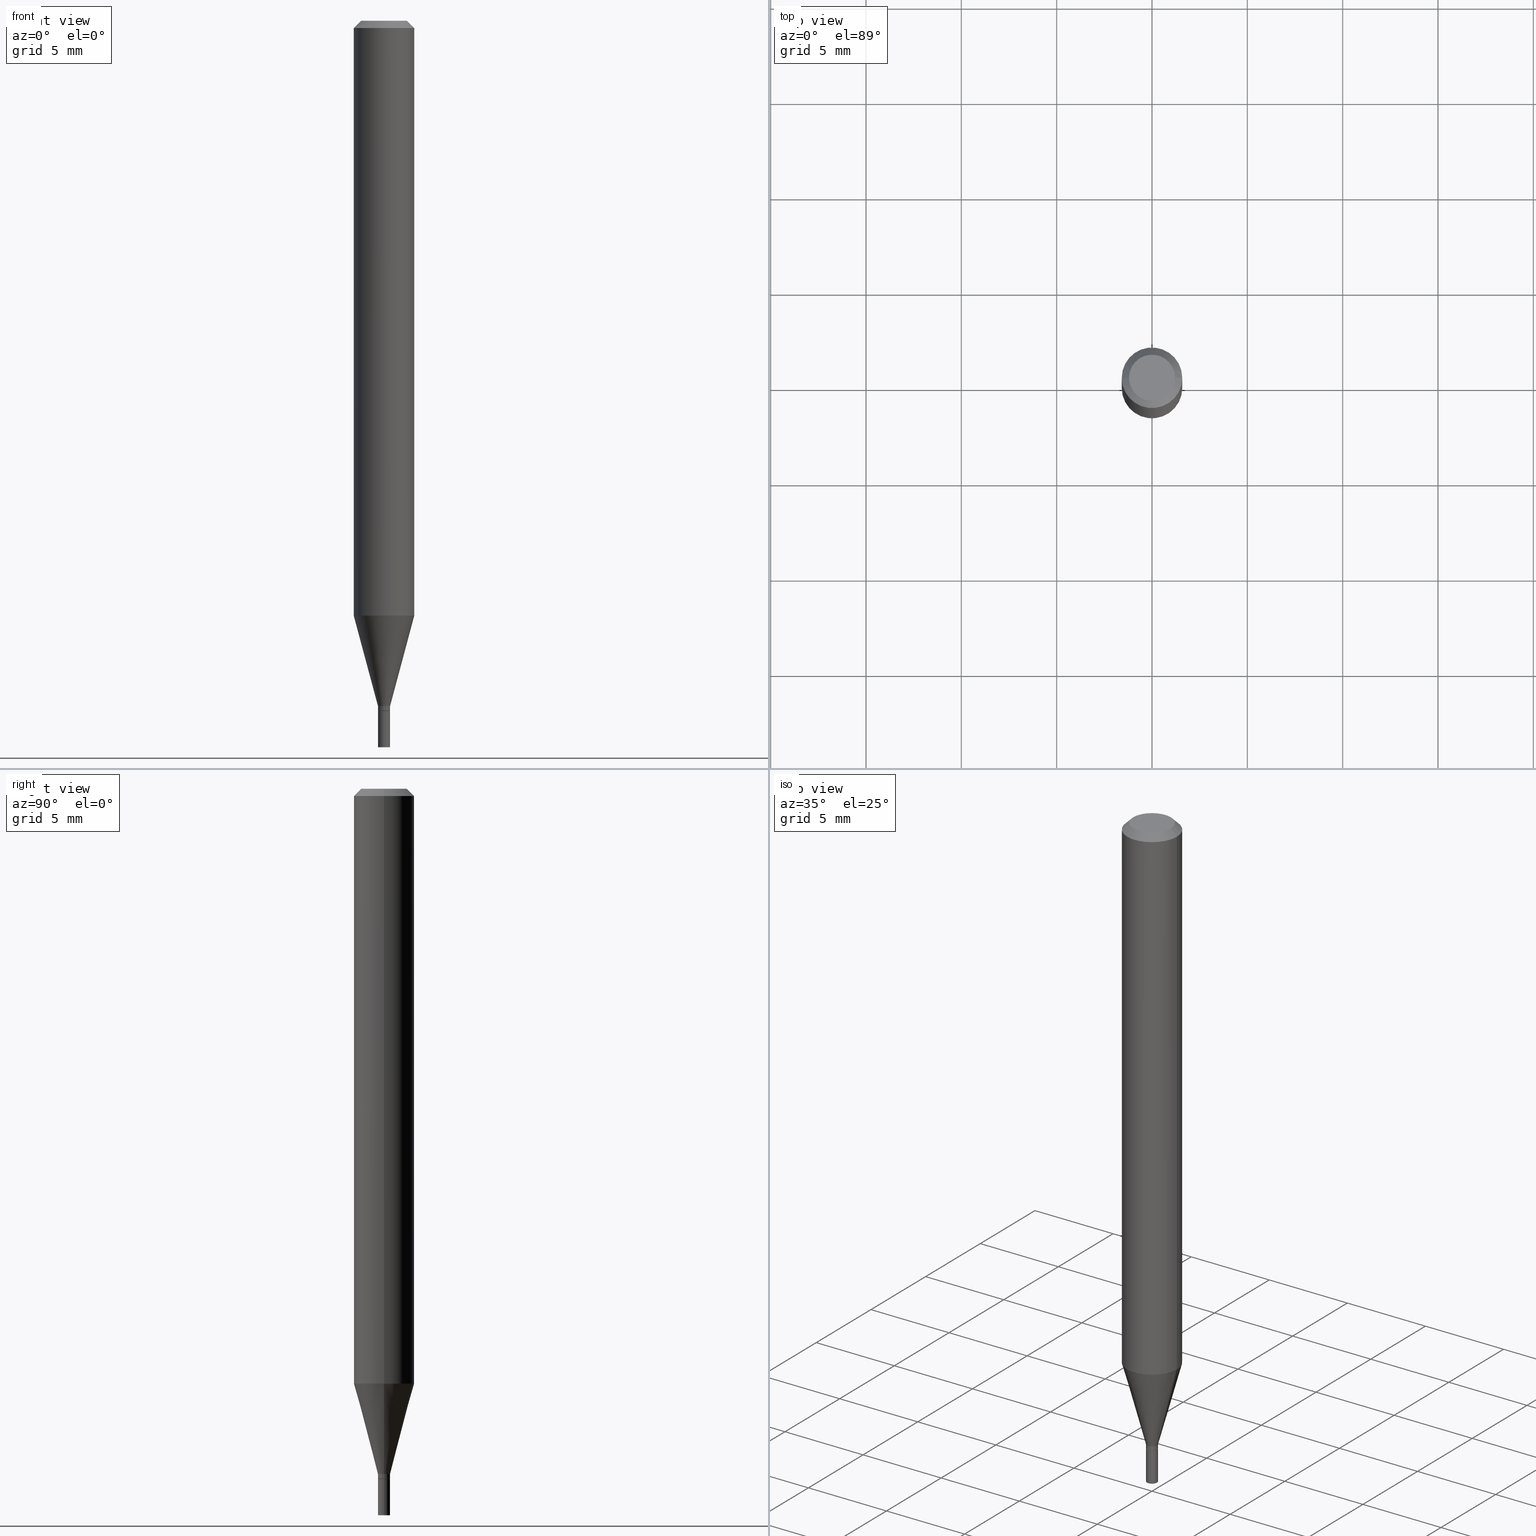
[diagram: canonical four-view strip — front | top / right | iso, engineering-drawing reading convention]
A machine part, canonical four-view strip (front | top / right | iso — engineering-drawing reading convention). The complete STEP part file that produces these views, byte-faithful:
ISO-10303-21;
HEADER;
FILE_DESCRIPTION (( 'STEP AP203' ),
    '1' );
FILE_NAME ('01176.STEP',
    '2024-03-19T23:40:57',
    ( '' ),
    ( '' ),
    'SwSTEP 2.0',
    'SolidWorks 2023',
    '' );
FILE_SCHEMA (( 'CONFIG_CONTROL_DESIGN' ));
ENDSEC;

DATA;
#1 = FACE_OUTER_BOUND ( 'NONE', #189, .T. ) ;
#2 = CIRCLE ( 'NONE', #58, 0.01250000000000000069 ) ;
#3 = DIRECTION ( 'NONE',  ( 1.000000000000000000, -6.982962677686258822E-15, 0.000000000000000000 ) ) ;
#4 = ORIENTED_EDGE ( 'NONE', *, *, #321, .T. ) ;
#5 = CIRCLE ( 'NONE', #160, 0.01200000000000000198 ) ;
#6 = AXIS2_PLACEMENT_3D ( 'NONE', #353, #464, #138 ) ;
#7 = ORIENTED_EDGE ( 'NONE', *, *, #229, .F. ) ;
#8 = APPROVAL_STATUS ( 'not_yet_approved' ) ;
#9 = ORIENTED_EDGE ( 'NONE', *, *, #229, .T. ) ;
#10 = EDGE_CURVE ( 'NONE', #44, #439, #426, .T. ) ;
#11 = DATE_TIME_ROLE ( 'classification_date' ) ;
#12 = EDGE_LOOP ( 'NONE', ( #261, #220 ) ) ;
#13 = APPLICATION_PROTOCOL_DEFINITION ( 'international standard', 'config_control_design', 1994, #280 ) ;
#14 = VECTOR ( 'NONE', #387, 39.37007874015748143 ) ;
#15 = ORIENTED_EDGE ( 'NONE', *, *, #140, .F. ) ;
#16 = AXIS2_PLACEMENT_3D ( 'NONE', #433, #248, #37 ) ;
#17 = PERSON_AND_ORGANIZATION_ROLE ( 'design_supplier' ) ;
#18 = VERTEX_POINT ( 'NONE', #129 ) ;
#19 = CARTESIAN_POINT ( 'NONE',  ( 0.06250000000000001388, -4.725361974306381794E-15, -1.228397459621556109 ) ) ;
#20 = CC_DESIGN_PERSON_AND_ORGANIZATION_ASSIGNMENT ( #83, #51, ( #221 ) ) ;
#21 = CARTESIAN_POINT ( 'NONE',  ( 0.01250000000000000069, -5.324509041735797299E-15, -1.500000000000000222 ) ) ;
#22 = CARTESIAN_POINT ( 'NONE',  ( -0.01250000000000000069, 8.881784197001252816E-17, -6.148668862818633278E-31 ) ) ;
#23 = CARTESIAN_POINT ( 'NONE',  ( -0.01200000000000000198, -4.887446552386159876E-15, -1.425000000000000266 ) ) ;
#24 = CONICAL_SURFACE ( 'NONE', #382, 0.06250000000000000000, 0.7853981633974768117 ) ;
#25 = CIRCLE ( 'NONE', #425, 0.06250000000000000000 ) ;
#26 = FACE_OUTER_BOUND ( 'NONE', #198, .T. ) ;
#27 = DIMENSIONAL_EXPONENTS ( 1.000000000000000000, 0.000000000000000000, 0.000000000000000000, 0.000000000000000000, 0.000000000000000000, 0.000000000000000000, 0.000000000000000000 ) ;
#28 = CARTESIAN_POINT ( 'NONE',  ( 0.000000000000000000, 0.000000000000000000, 0.000000000000000000 ) ) ;
#29 = DIRECTION ( 'NONE',  ( 1.000000000000000000, -6.982962677686258822E-15, 0.000000000000000000 ) ) ;
#30 = VERTEX_POINT ( 'NONE', #301 ) ;
#31 = CYLINDRICAL_SURFACE ( 'NONE', #64, 0.06250000000000000000 ) ;
#32 = DIRECTION ( 'NONE',  ( -2.438088387897960049E-29, 3.491481338843145188E-15, 1.000000000000000000 ) ) ;
#33 = CARTESIAN_POINT ( 'NONE',  ( 0.000000000000000000, 0.000000000000000000, 0.000000000000000000 ) ) ;
#34 = AXIS2_PLACEMENT_3D ( 'NONE', #211, #102, #430 ) ;
#35 = CC_DESIGN_APPROVAL ( #428, ( #390 ) ) ;
#36 = CARTESIAN_POINT ( 'NONE',  ( 3.668203209277705088E-31, -5.237222008264718399E-17, -0.01499999999999999944 ) ) ;
#37 = DIRECTION ( 'NONE',  ( 1.000000000000000000, -6.982962677686250144E-15, 0.000000000000000000 ) ) ;
#38 = UNCERTAINTY_MEASURE_WITH_UNIT (LENGTH_MEASURE( 1.000000000000000082E-05 ), #357, 'distance_accuracy_value', 'NONE');
#39 = DIRECTION ( 'NONE',  ( 1.000000000000000000, -6.982962677686294321E-15, 0.000000000000000000 ) ) ;
#40 = LINE ( 'NONE', #141, #445 ) ;
#41 =( NAMED_UNIT ( * ) SI_UNIT ( $, .STERADIAN. ) SOLID_ANGLE_UNIT ( ) );
#42 = AXIS2_PLACEMENT_3D ( 'NONE', #242, #92, #164 ) ;
#43 = DIRECTION ( 'NONE',  ( 1.000000000000000000, -6.982962677686258822E-15, 0.000000000000000000 ) ) ;
#44 = VERTEX_POINT ( 'NONE', #266 ) ;
#45 = ORIENTED_EDGE ( 'NONE', *, *, #408, .T. ) ;
#46 = CLOSED_SHELL ( 'NONE', ( #293, #393, #99, #287, #146, #460, #71, #403, #450, #355, #415, #379 ) ) ;
#47 = AXIS2_PLACEMENT_3D ( 'NONE', #306, #309, #98 ) ;
#48 = APPROVAL_PERSON_ORGANIZATION ( #54, #401, #400 ) ;
#49 = EDGE_CURVE ( 'NONE', #18, #66, #236, .T. ) ;
#50 = EDGE_LOOP ( 'NONE', ( #84, #45, #95, #270 ) ) ;
#51 = PERSON_AND_ORGANIZATION_ROLE ( 'design_owner' ) ;
#52 = CARTESIAN_POINT ( 'NONE',  ( 3.484793048813820547E-29, -4.975360907851483175E-15, -1.425000000000000266 ) ) ;
#53 = EDGE_LOOP ( 'NONE', ( #62, #368, #187, #380 ) ) ;
#54 = PERSON_AND_ORGANIZATION ( #232, #313 ) ;
#55 = EDGE_LOOP ( 'NONE', ( #258, #7 ) ) ;
#56 = APPROVAL_DATE_TIME ( #371, #401 ) ;
#57 = ADVANCED_FACE ( 'NONE', ( #239 ), #133, .T. ) ;
#58 = AXIS2_PLACEMENT_3D ( 'NONE', #457, #132, #381 ) ;
#59 = EDGE_LOOP ( 'NONE', ( #331, #290, #181, #370 ) ) ;
#60 = AXIS2_PLACEMENT_3D ( 'NONE', #36, #432, #435 ) ;
#61 = ORIENTED_EDGE ( 'NONE', *, *, #49, .F. ) ;
#62 = ORIENTED_EDGE ( 'NONE', *, *, #207, .T. ) ;
#63 = ORIENTED_EDGE ( 'NONE', *, *, #10, .T. ) ;
#64 = AXIS2_PLACEMENT_3D ( 'NONE', #196, #162, #126 ) ;
#65 = CARTESIAN_POINT ( 'NONE',  ( 3.483570314410727746E-29, -4.973615167182062460E-15, -1.424500000000000322 ) ) ;
#66 = VERTEX_POINT ( 'NONE', #228 ) ;
#67 = DIRECTION ( 'NONE',  ( 0.2588190451025211281, 1.565188264969623940E-15, 0.9659258262890682012 ) ) ;
#68 = CYLINDRICAL_SURFACE ( 'NONE', #183, 0.06250000000000000000 ) ;
#69 = DIRECTION ( 'NONE',  ( 0.7071067811865642261, -2.468850131082431399E-15, 0.7071067811865309194 ) ) ;
#71 = ADVANCED_FACE ( 'NONE', ( #193 ), #31, .T. ) ;
#70 = LINE ( 'NONE', #383, #14 ) ;
#72 = CIRCLE ( 'NONE', #6, 0.04749999999999999362 ) ;
#73 = DIRECTION ( 'NONE',  ( -2.445468806185136597E-29, 3.491481338843145583E-15, 1.000000000000000000 ) ) ;
#74 = CARTESIAN_POINT ( 'NONE',  ( 3.460338360751968441E-29, -4.940446094463050737E-15, -1.415000000000000036 ) ) ;
#75 = CARTESIAN_POINT ( 'NONE',  ( 3.668203209277704895E-29, -5.237222008264718177E-15, -1.500000000000000222 ) ) ;
#76 = COORDINATED_UNIVERSAL_TIME_OFFSET ( 5, 0, .BEHIND. ) ;
#77 = ORIENTED_EDGE ( 'NONE', *, *, #286, .T. ) ;
#78 = VERTEX_POINT ( 'NONE', #23 ) ;
#79 = SECURITY_CLASSIFICATION_LEVEL ( 'unclassified' ) ;
#80 = PRODUCT_RELATED_PRODUCT_CATEGORY ( 'detail', '', ( #221 ) ) ;
#81 = AXIS2_PLACEMENT_3D ( 'NONE', #204, #106, #388 ) ;
#82 = EDGE_LOOP ( 'NONE', ( #411, #366, #114, #86 ) ) ;
#83 = PERSON_AND_ORGANIZATION ( #232, #313 ) ;
#84 = ORIENTED_EDGE ( 'NONE', *, *, #466, .F. ) ;
#85 = COORDINATED_UNIVERSAL_TIME_OFFSET ( 5, 0, .BEHIND. ) ;
#86 = ORIENTED_EDGE ( 'NONE', *, *, #363, .F. ) ;
#87 = CONICAL_SURFACE ( 'NONE', #262, 0.01249999999999992437, 0.2617993877991497964 ) ;
#88 = FACE_OUTER_BOUND ( 'NONE', #256, .T. ) ;
#89 = DIRECTION ( 'NONE',  ( -2.438088387897960049E-29, 3.491481338843145188E-15, 1.000000000000000000 ) ) ;
#90 = DIRECTION ( 'NONE',  ( 1.000000000000000000, -6.982962677686267499E-15, 4.876176775795936353E-29 ) ) ;
#91 = ADVANCED_BREP_SHAPE_REPRESENTATION ( '01176', ( #271, #105, #192 ), #171 ) ;
#92 = DIRECTION ( 'NONE',  ( -2.445468806185136597E-29, 3.491481338843145583E-15, 1.000000000000000000 ) ) ;
#93 = VERTEX_POINT ( 'NONE', #341 ) ;
#94 = DIRECTION ( 'NONE',  ( 1.000000000000000000, -6.982962677686265922E-15, 4.876176775795935793E-29 ) ) ;
#95 = ORIENTED_EDGE ( 'NONE', *, *, #252, .T. ) ;
#96 = VECTOR ( 'NONE', #278, 39.37007874015748143 ) ;
#97 = CONICAL_SURFACE ( 'NONE', #81, 0.01200000000000000198, 0.7853981633974718157 ) ;
#98 = DIRECTION ( 'NONE',  ( 1.000000000000000000, -6.982962677686258822E-15, 0.000000000000000000 ) ) ;
#99 = ADVANCED_FACE ( 'NONE', ( #372 ), #24, .T. ) ;
#100 = LINE ( 'NONE', #137, #110 ) ;
#101 = DIRECTION ( 'NONE',  ( -2.445468806185136597E-29, 3.491481338843145583E-15, 1.000000000000000000 ) ) ;
#102 = DIRECTION ( 'NONE',  ( 2.438088387897960049E-29, -3.491481338843145188E-15, -1.000000000000000000 ) ) ;
#103 = CARTESIAN_POINT ( 'NONE',  ( 3.316907271900976096E-16, 0.04749999999999999362, -5.911810482194846144E-16 ) ) ;
#104 = DIRECTION ( 'NONE',  ( -2.445468806185136597E-29, 3.491481338843145583E-15, 1.000000000000000000 ) ) ;
#105 = MANIFOLD_SOLID_BREP ( 'Body-Move/Copy2[2]', #46 ) ;
#106 = DIRECTION ( 'NONE',  ( -2.445468806185136597E-29, 3.491481338843145583E-15, 1.000000000000000000 ) ) ;
#107 = CARTESIAN_POINT ( 'NONE',  ( -0.01250000000000000069, -5.017473616088089257E-15, -1.425000000000000266 ) ) ;
#108 = CYLINDRICAL_SURFACE ( 'NONE', #184, 0.01249999999999992437 ) ;
#109 = FACE_OUTER_BOUND ( 'NONE', #82, .T. ) ;
#110 = VECTOR ( 'NONE', #69, 39.37007874015748143 ) ;
#111 = VECTOR ( 'NONE', #235, 39.37007874015748143 ) ;
#112 = LOCAL_TIME ( 19, 40, 57.00000000000000000, #85 ) ;
#113 = EDGE_CURVE ( 'NONE', #78, #44, #307, .T. ) ;
#114 = ORIENTED_EDGE ( 'NONE', *, *, #49, .T. ) ;
#115 = DATE_TIME_ROLE ( 'creation_date' ) ;
#116 = ORIENTED_EDGE ( 'NONE', *, *, #113, .T. ) ;
#117 = CALENDAR_DATE ( 2024, 19, 3 ) ;
#118 = ORIENTED_EDGE ( 'NONE', *, *, #267, .T. ) ;
#119 = CALENDAR_DATE ( 2024, 19, 3 ) ;
#120 = AXIS2_PLACEMENT_3D ( 'NONE', #347, #32, #168 ) ;
#121 = CONICAL_SURFACE ( 'NONE', #60, 0.06250000000000000000, 0.7853981633974768117 ) ;
#122 = ORIENTED_EDGE ( 'NONE', *, *, #348, .T. ) ;
#123 = DIRECTION ( 'NONE',  ( -2.445468806185136597E-29, 3.491481338843145583E-15, 1.000000000000000000 ) ) ;
#124 = ORIENTED_EDGE ( 'NONE', *, *, #210, .F. ) ;
#125 = CC_DESIGN_DATE_AND_TIME_ASSIGNMENT ( #218, #115, ( #163 ) ) ;
#126 = DIRECTION ( 'NONE',  ( 1.000000000000000000, -6.982962677686266711E-15, 4.876176775795935793E-29 ) ) ;
#127 = FACE_OUTER_BOUND ( 'NONE', #12, .T. ) ;
#128 = VECTOR ( 'NONE', #249, 39.37007874015748143 ) ;
#129 = CARTESIAN_POINT ( 'NONE',  ( 0.01249999999999992437, -5.060902200653140005E-15, -1.424500000000000322 ) ) ;
#130 = EDGE_CURVE ( 'NONE', #30, #149, #2, .T. ) ;
#131 = DIRECTION ( 'NONE',  ( -2.445468806185136877E-29, 3.491481338843145188E-15, 1.000000000000000000 ) ) ;
#132 = DIRECTION ( 'NONE',  ( -2.445468806185136597E-29, 3.491481338843145583E-15, 1.000000000000000000 ) ) ;
#133 = CYLINDRICAL_SURFACE ( 'NONE', #436, 0.01250000000000000069 ) ;
#134 = DIRECTION ( 'NONE',  ( -2.445468806185136597E-29, 3.491481338843145583E-15, 1.000000000000000000 ) ) ;
#135 = ORIENTED_EDGE ( 'NONE', *, *, #336, .T. ) ;
#136 = ORIENTED_EDGE ( 'NONE', *, *, #169, .F. ) ;
#137 = CARTESIAN_POINT ( 'NONE',  ( 0.01200000000000000198, -5.059156459983718502E-15, -1.425000000000000266 ) ) ;
#138 = DIRECTION ( 'NONE',  ( 1.000000000000000000, -6.982962677686267499E-15, 4.852736867747366768E-29 ) ) ;
#139 = CC_DESIGN_APPROVAL ( #401, ( #463 ) ) ;
#140 = EDGE_CURVE ( 'NONE', #66, #292, #275, .T. ) ;
#141 = CARTESIAN_POINT ( 'NONE',  ( -0.01249999999999992437, -4.851628252493038529E-15, -1.415000000000000036 ) ) ;
#142 = CARTESIAN_POINT ( 'NONE',  ( 0.01250000000000000069, -8.728703347107834621E-17, 6.095220969744920617E-31 ) ) ;
#143 = EDGE_CURVE ( 'NONE', #441, #422, #170, .T. ) ;
#144 = ORIENTED_EDGE ( 'NONE', *, *, #434, .T. ) ;
#145 = CONICAL_SURFACE ( 'NONE', #320, 0.01249999999999992437, 0.2617993877991497964 ) ;
#146 = ADVANCED_FACE ( 'NONE', ( #88 ), #87, .T. ) ;
#147 = ORIENTED_EDGE ( 'NONE', *, *, #113, .F. ) ;
#148 = APPROVAL_ROLE ( '' ) ;
#149 = VERTEX_POINT ( 'NONE', #21 ) ;
#150 = APPROVAL_STATUS ( 'not_yet_approved' ) ;
#151 = ORIENTED_EDGE ( 'NONE', *, *, #180, .T. ) ;
#152 = PERSON_AND_ORGANIZATION_ROLE ( 'creator' ) ;
#153 = CLOSED_SHELL ( 'NONE', ( #234, #299, #57, #213 ) ) ;
#154 = ORIENTED_EDGE ( 'NONE', *, *, #420, .F. ) ;
#155 = APPROVAL_STATUS ( 'not_yet_approved' ) ;
#156 = DIRECTION ( 'NONE',  ( 1.000000000000000000, -6.982962677686266711E-15, 0.000000000000000000 ) ) ;
#157 = CYLINDRICAL_SURFACE ( 'NONE', #455, 0.01249999999999992437 ) ;
#158 = CARTESIAN_POINT ( 'NONE',  ( 3.668203209277705088E-31, -5.237222008264718399E-17, -0.01499999999999999944 ) ) ;
#159 = CARTESIAN_POINT ( 'NONE',  ( -0.06250000000000000000, 3.840629472727444916E-16, -0.01499999999999999944 ) ) ;
#160 = AXIS2_PLACEMENT_3D ( 'NONE', #52, #123, #237 ) ;
#161 = LOCAL_TIME ( 19, 40, 57.00000000000000000, #449 ) ;
#162 = DIRECTION ( 'NONE',  ( -2.445468806185136597E-29, 3.491481338843145583E-15, 1.000000000000000000 ) ) ;
#163 = PRODUCT_DEFINITION ( 'UNKNOWN', '', #390, #356 ) ;
#164 = DIRECTION ( 'NONE',  ( 1.000000000000000000, -6.982962677686262766E-15, 0.000000000000000000 ) ) ;
#165 = DIRECTION ( 'NONE',  ( -2.445468806185136597E-29, 3.491481338843145583E-15, 1.000000000000000000 ) ) ;
#166 = LINE ( 'NONE', #424, #365 ) ;
#167 = DIRECTION ( 'NONE',  ( -2.445468806185136877E-29, 3.491481338843145188E-15, 1.000000000000000000 ) ) ;
#168 = DIRECTION ( 'NONE',  ( 1.000000000000000000, -6.982962677686265922E-15, 4.876176775795935793E-29 ) ) ;
#169 = EDGE_CURVE ( 'NONE', #44, #18, #327, .T. ) ;
#170 = CIRCLE ( 'NONE', #373, 0.06250000000000000000 ) ;
#171 =( GEOMETRIC_REPRESENTATION_CONTEXT ( 3 ) GLOBAL_UNCERTAINTY_ASSIGNED_CONTEXT ( ( #38 ) ) GLOBAL_UNIT_ASSIGNED_CONTEXT ( ( #357, #284, #41 ) ) REPRESENTATION_CONTEXT ( 'NONE', 'WORKASPACE' ) );
#172 = CARTESIAN_POINT ( 'NONE',  ( 0.06250000000000000000, -4.888073874380388472E-16, -0.01499999999999999944 ) ) ;
#173 = DIRECTION ( 'NONE',  ( 1.000000000000000000, -6.982962677686250144E-15, 0.000000000000000000 ) ) ;
#174 = CARTESIAN_POINT ( 'NONE',  ( -0.06250000000000000000, -1.726560303666755986E-15, -0.01499999999999999944 ) ) ;
#175 = DIRECTION ( 'NONE',  ( -0.2588190451025211281, 5.211531920934548675E-15, 0.9659258262890682012 ) ) ;
#176 = PLANE ( 'NONE',  #34 ) ;
#177 = PRODUCT_DEFINITION_SHAPE ( 'NONE', 'NONE',  #163 ) ;
#178 = CIRCLE ( 'NONE', #298, 0.01249999999999992437 ) ;
#179 = DIRECTION ( 'NONE',  ( 1.000000000000000000, -6.982962677686262766E-15, 0.000000000000000000 ) ) ;
#180 = EDGE_CURVE ( 'NONE', #439, #335, #40, .T. ) ;
#181 = ORIENTED_EDGE ( 'NONE', *, *, #252, .F. ) ;
#182 = VERTEX_POINT ( 'NONE', #243 ) ;
#183 = AXIS2_PLACEMENT_3D ( 'NONE', #339, #134, #304 ) ;
#184 = AXIS2_PLACEMENT_3D ( 'NONE', #208, #251, #395 ) ;
#185 = ORIENTED_EDGE ( 'NONE', *, *, #276, .F. ) ;
#186 = APPROVAL_DATE_TIME ( #294, #454 ) ;
#187 = ORIENTED_EDGE ( 'NONE', *, *, #340, .F. ) ;
#188 = MECHANICAL_CONTEXT ( 'NONE', #230, 'mechanical' ) ;
#189 = EDGE_LOOP ( 'NONE', ( #338, #233 ) ) ;
#191 = CALENDAR_DATE ( 2024, 19, 3 ) ;
#190 = CC_DESIGN_PERSON_AND_ORGANIZATION_ASSIGNMENT ( #410, #334, ( #463 ) ) ;
#192 = AXIS2_PLACEMENT_3D ( 'NONE', #407, #265, #444 ) ;
#193 = FACE_OUTER_BOUND ( 'NONE', #300, .T. ) ;
#194 = VERTEX_POINT ( 'NONE', #107 ) ;
#195 = CARTESIAN_POINT ( 'NONE',  ( -0.06250000000000001388, -3.844837597100926719E-15, -1.228397459621556109 ) ) ;
#196 = CARTESIAN_POINT ( 'NONE',  ( 0.000000000000000000, 0.000000000000000000, 0.000000000000000000 ) ) ;
#197 = CIRCLE ( 'NONE', #47, 0.01249999999999992437 ) ;
#198 = EDGE_LOOP ( 'NONE', ( #77, #63, #296, #61 ) ) ;
#199 = DIRECTION ( 'NONE',  ( -0.7071067811865676678, 2.468850131082468081E-15, -0.7071067811865273667 ) ) ;
#200 = DIRECTION ( 'NONE',  ( -2.445468806185136597E-29, 3.491481338843145583E-15, 1.000000000000000000 ) ) ;
#201 = EDGE_CURVE ( 'NONE', #182, #263, #375, .T. ) ;
#202 = PLANE ( 'NONE',  #120 ) ;
#203 = FACE_OUTER_BOUND ( 'NONE', #446, .T. ) ;
#204 = CARTESIAN_POINT ( 'NONE',  ( 3.484793048813820547E-29, -4.975360907851483175E-15, -1.425000000000000266 ) ) ;
#205 = AXIS2_PLACEMENT_3D ( 'NONE', #461, #104, #250 ) ;
#206 = CARTESIAN_POINT ( 'NONE',  ( 0.06250000000000000000, -4.811533449433679005E-16, -0.01499999999999999944 ) ) ;
#207 = EDGE_CURVE ( 'NONE', #149, #30, #423, .T. ) ;
#208 = CARTESIAN_POINT ( 'NONE',  ( 0.000000000000000000, 0.000000000000000000, 0.000000000000000000 ) ) ;
#209 = LENGTH_MEASURE_WITH_UNIT ( LENGTH_MEASURE( 0.02539999999999999897 ), #323 );
#210 = EDGE_CURVE ( 'NONE', #333, #18, #100, .T. ) ;
#211 = CARTESIAN_POINT ( 'NONE',  ( 8.728703347111317935E-17, 0.01249999999999502551, -1.425000000000000266 ) ) ;
#212 = AXIS2_PLACEMENT_3D ( 'NONE', #33, #281, #427 ) ;
#213 = ADVANCED_FACE ( 'NONE', ( #203 ), #176, .F. ) ;
#214 = LOCAL_TIME ( 19, 40, 57.00000000000000000, #404 ) ;
#215 = DIRECTION ( 'NONE',  ( -2.445468806185136877E-29, 3.491481338843145188E-15, 1.000000000000000000 ) ) ;
#216 = DIRECTION ( 'NONE',  ( 1.000000000000000000, -6.982962677686266711E-15, 0.000000000000000000 ) ) ;
#218 = DATE_AND_TIME ( #362, #214 ) ;
#217 = CC_DESIGN_PERSON_AND_ORGANIZATION_ASSIGNMENT ( #330, #17, ( #390 ) ) ;
#219 = ORIENTED_EDGE ( 'NONE', *, *, #340, .T. ) ;
#220 = ORIENTED_EDGE ( 'NONE', *, *, #130, .F. ) ;
#221 = PRODUCT ( '01176', '01176', '', ( #188 ) ) ;
#222 = VECTOR ( 'NONE', #67, 39.37007874015748143 ) ;
#223 = AXIS2_PLACEMENT_3D ( 'NONE', #398, #431, #39 ) ;
#224 = ORIENTED_EDGE ( 'NONE', *, *, #130, .T. ) ;
#225 = PERSON_AND_ORGANIZATION ( #232, #313 ) ;
#226 = ORIENTED_EDGE ( 'NONE', *, *, #408, .F. ) ;
#227 = CALENDAR_DATE ( 2024, 19, 3 ) ;
#228 = CARTESIAN_POINT ( 'NONE',  ( 0.01249999999999992437, -5.027733127934128282E-15, -1.415000000000000036 ) ) ;
#229 = EDGE_CURVE ( 'NONE', #78, #333, #312, .T. ) ;
#230 = APPLICATION_CONTEXT ( 'configuration controlled 3d designs of mechanical parts and assemblies' ) ;
#231 = AXIS2_PLACEMENT_3D ( 'NONE', #244, #255, #216 ) ;
#232 = PERSON ( 'UNSPECIFIED', 'UNSPECIFIED', 'UNSPECIFIED', ('UNSPECIFIED'), ('UNSPECIFIED'), ('UNSPECIFIED') ) ;
#233 = ORIENTED_EDGE ( 'NONE', *, *, #466, .T. ) ;
#234 = ADVANCED_FACE ( 'NONE', ( #359 ), #322, .T. ) ;
#235 = DIRECTION ( 'NONE',  ( -2.445468806185136877E-29, 3.491481338843145188E-15, 1.000000000000000000 ) ) ;
#236 = LINE ( 'NONE', #346, #246 ) ;
#237 = DIRECTION ( 'NONE',  ( 1.000000000000000000, -6.982962677686250144E-15, 0.000000000000000000 ) ) ;
#238 = DIRECTION ( 'NONE',  ( 1.000000000000000000, -6.982962677686294321E-15, 0.000000000000000000 ) ) ;
#239 = FACE_OUTER_BOUND ( 'NONE', #264, .T. ) ;
#240 = AXIS2_PLACEMENT_3D ( 'NONE', #75, #283, #391 ) ;
#241 = DIRECTION ( 'NONE',  ( -0.7071067811865642261, 7.493145998870414114E-15, 0.7071067811865309194 ) ) ;
#242 = CARTESIAN_POINT ( 'NONE',  ( 3.004007669101581496E-29, -4.288926806950990124E-15, -1.228397459621556109 ) ) ;
#243 = CARTESIAN_POINT ( 'NONE',  ( -0.04749999999999999362, 3.578768372314195715E-16, -8.506713692488727040E-16 ) ) ;
#244 = CARTESIAN_POINT ( 'NONE',  ( 3.668203209277705088E-31, -5.237222008264718399E-17, -0.01499999999999999944 ) ) ;
#245 = DIRECTION ( 'NONE',  ( -2.445468806185136597E-29, 3.491481338843145583E-15, 1.000000000000000000 ) ) ;
#246 = VECTOR ( 'NONE', #167, 39.37007874015748143 ) ;
#247 = LOCAL_TIME ( 19, 40, 57.00000000000000000, #332 ) ;
#248 = DIRECTION ( 'NONE',  ( -2.445468806185136597E-29, 3.491481338843145583E-15, 1.000000000000000000 ) ) ;
#249 = DIRECTION ( 'NONE',  ( 0.7071067811865676678, -7.319954787623323887E-15, -0.7071067811865273667 ) ) ;
#250 = DIRECTION ( 'NONE',  ( 1.000000000000000000, -6.982962677686258822E-15, 0.000000000000000000 ) ) ;
#251 = DIRECTION ( 'NONE',  ( -2.445468806185136597E-29, 3.491481338843145583E-15, 1.000000000000000000 ) ) ;
#252 = EDGE_CURVE ( 'NONE', #422, #441, #389, .T. ) ;
#253 = APPROVAL_PERSON_ORGANIZATION ( #257, #428, #325 ) ;
#254 = FACE_OUTER_BOUND ( 'NONE', #324, .T. ) ;
#255 = DIRECTION ( 'NONE',  ( -2.445468806185136597E-29, 3.491481338843145583E-15, 1.000000000000000000 ) ) ;
#256 = EDGE_LOOP ( 'NONE', ( #122, #151, #406, #15 ) ) ;
#257 = PERSON_AND_ORGANIZATION ( #232, #313 ) ;
#258 = ORIENTED_EDGE ( 'NONE', *, *, #260, .F. ) ;
#259 = SHAPE_DEFINITION_REPRESENTATION ( #177, #91 ) ;
#260 = EDGE_CURVE ( 'NONE', #333, #78, #5, .T. ) ;
#261 = ORIENTED_EDGE ( 'NONE', *, *, #207, .F. ) ;
#262 = AXIS2_PLACEMENT_3D ( 'NONE', #419, #377, #310 ) ;
#263 = VERTEX_POINT ( 'NONE', #459 ) ;
#264 = EDGE_LOOP ( 'NONE', ( #402, #224, #144, #154 ) ) ;
#265 = DIRECTION ( 'NONE',  ( 0.000000000000000000, 0.000000000000000000, 1.000000000000000000 ) ) ;
#266 = CARTESIAN_POINT ( 'NONE',  ( -0.01249999999999992437, -4.884797325212050253E-15, -1.424500000000000322 ) ) ;
#267 = EDGE_CURVE ( 'NONE', #182, #441, #343, .T. ) ;
#268 = PLANE ( 'NONE',  #318 ) ;
#269 = APPROVAL_PERSON_ORGANIZATION ( #225, #454, #148 ) ;
#270 = ORIENTED_EDGE ( 'NONE', *, *, #267, .F. ) ;
#271 = MANIFOLD_SOLID_BREP ( 'Body-Move/Copy2[1]', #153 ) ;
#272 = CARTESIAN_POINT ( 'NONE',  ( 3.484793048813820547E-29, -4.975360907851483175E-15, -1.425000000000000266 ) ) ;
#273 = CARTESIAN_POINT ( 'NONE',  ( -0.01249999999999992437, 8.881784197001198582E-17, -6.148668862818594743E-31 ) ) ;
#274 = DIRECTION ( 'NONE',  ( -2.445468806185136597E-29, 3.491481338843145583E-15, 1.000000000000000000 ) ) ;
#275 = LINE ( 'NONE', #385, #222 ) ;
#276 = EDGE_CURVE ( 'NONE', #335, #441, #70, .T. ) ;
#277 = CIRCLE ( 'NONE', #42, 0.06250000000000000000 ) ;
#278 = DIRECTION ( 'NONE',  ( -2.445468806185136877E-29, 3.491481338843145188E-15, 1.000000000000000000 ) ) ;
#279 = FACE_OUTER_BOUND ( 'NONE', #59, .T. ) ;
#280 = APPLICATION_CONTEXT ( 'configuration controlled 3d designs of mechanical parts and assemblies' ) ;
#281 = DIRECTION ( 'NONE',  ( -2.445468806185136597E-29, 3.491481338843145583E-15, 1.000000000000000000 ) ) ;
#282 = FACE_OUTER_BOUND ( 'NONE', #453, .T. ) ;
#283 = DIRECTION ( 'NONE',  ( -2.445468806185136597E-29, 3.491481338843145583E-15, 1.000000000000000000 ) ) ;
#284 =( NAMED_UNIT ( * ) PLANE_ANGLE_UNIT ( ) SI_UNIT ( $, .RADIAN. ) );
#285 = CIRCLE ( 'NONE', #352, 0.01249999999999992437 ) ;
#286 = EDGE_CURVE ( 'NONE', #18, #44, #285, .T. ) ;
#287 = ADVANCED_FACE ( 'NONE', ( #279 ), #68, .T. ) ;
#288 = DIRECTION ( 'NONE',  ( 2.438088387897960049E-29, -3.491481338843145188E-15, -1.000000000000000000 ) ) ;
#289 = VECTOR ( 'NONE', #199, 39.37007874015748143 ) ;
#290 = ORIENTED_EDGE ( 'NONE', *, *, #276, .T. ) ;
#291 = PERSON_AND_ORGANIZATION ( #232, #313 ) ;
#292 = VERTEX_POINT ( 'NONE', #19 ) ;
#293 = ADVANCED_FACE ( 'NONE', ( #26 ), #157, .T. ) ;
#294 = DATE_AND_TIME ( #191, #397 ) ;
#295 = ORIENTED_EDGE ( 'NONE', *, *, #180, .F. ) ;
#296 = ORIENTED_EDGE ( 'NONE', *, *, #348, .F. ) ;
#297 = DATE_AND_TIME ( #117, #161 ) ;
#298 = AXIS2_PLACEMENT_3D ( 'NONE', #311, #73, #3 ) ;
#299 = ADVANCED_FACE ( 'NONE', ( #127 ), #268, .F. ) ;
#300 = EDGE_LOOP ( 'NONE', ( #185, #4, #135, #448 ) ) ;
#301 = CARTESIAN_POINT ( 'NONE',  ( -0.01250000000000000069, -5.017473616088089257E-15, -1.500000000000000222 ) ) ;
#302 = CARTESIAN_POINT ( 'NONE',  ( 0.000000000000000000, 0.000000000000000000, 0.000000000000000000 ) ) ;
#303 = DIRECTION ( 'NONE',  ( 2.445468806185136597E-29, -3.491481338843145583E-15, -1.000000000000000000 ) ) ;
#304 = DIRECTION ( 'NONE',  ( 1.000000000000000000, -6.982962677686266711E-15, 4.876176775795935793E-29 ) ) ;
#305 = CARTESIAN_POINT ( 'NONE',  ( -0.01200000000000000198, -4.890095779560271077E-15, -1.425000000000000266 ) ) ;
#306 = CARTESIAN_POINT ( 'NONE',  ( 3.460338360751968441E-29, -4.940446094463050737E-15, -1.415000000000000036 ) ) ;
#307 = LINE ( 'NONE', #305, #358 ) ;
#308 = CC_DESIGN_PERSON_AND_ORGANIZATION_ASSIGNMENT ( #440, #152, ( #390 ) ) ;
#309 = DIRECTION ( 'NONE',  ( -2.445468806185136597E-29, 3.491481338843145583E-15, 1.000000000000000000 ) ) ;
#310 = DIRECTION ( 'NONE',  ( 1.000000000000000000, -6.982962677686258822E-15, 0.000000000000000000 ) ) ;
#311 = CARTESIAN_POINT ( 'NONE',  ( 3.460338360751968441E-29, -4.940446094463050737E-15, -1.415000000000000036 ) ) ;
#312 = CIRCLE ( 'NONE', #396, 0.01200000000000000198 ) ;
#313 = ORGANIZATION ( 'UNSPECIFIED', 'UNSPECIFIED', '' ) ;
#314 = CARTESIAN_POINT ( 'NONE',  ( 3.004007669101581496E-29, -4.288926806950990124E-15, -1.228397459621556109 ) ) ;
#315 = DIRECTION ( 'NONE',  ( 1.000000000000000000, -6.982962677686267499E-15, 4.852736867747366768E-29 ) ) ;
#316 = LINE ( 'NONE', #142, #414 ) ;
#317 = LINE ( 'NONE', #206, #128 ) ;
#318 = AXIS2_PLACEMENT_3D ( 'NONE', #416, #89, #94 ) ;
#319 = DIRECTION ( 'NONE',  ( -2.445468806185136597E-29, 3.491481338843145583E-15, 1.000000000000000000 ) ) ;
#320 = AXIS2_PLACEMENT_3D ( 'NONE', #74, #101, #43 ) ;
#321 = EDGE_CURVE ( 'NONE', #335, #292, #277, .T. ) ;
#322 = CYLINDRICAL_SURFACE ( 'NONE', #212, 0.01250000000000000069 ) ;
#323 =( LENGTH_UNIT ( ) NAMED_UNIT ( * ) SI_UNIT ( $, .METRE. ) );
#324 = EDGE_LOOP ( 'NONE', ( #147, #9, #361, #136 ) ) ;
#325 = APPROVAL_ROLE ( '' ) ;
#326 = EDGE_CURVE ( 'NONE', #30, #194, #378, .T. ) ;
#327 = CIRCLE ( 'NONE', #205, 0.01249999999999992437 ) ;
#328 = ORIENTED_EDGE ( 'NONE', *, *, #201, .F. ) ;
#329 = CONICAL_SURFACE ( 'NONE', #16, 0.01200000000000000198, 0.7853981633974718157 ) ;
#330 = PERSON_AND_ORGANIZATION ( #232, #313 ) ;
#331 = ORIENTED_EDGE ( 'NONE', *, *, #438, .T. ) ;
#332 = COORDINATED_UNIVERSAL_TIME_OFFSET ( 5, 0, .BEHIND. ) ;
#333 = VERTEX_POINT ( 'NONE', #456 ) ;
#334 = PERSON_AND_ORGANIZATION_ROLE ( 'classification_officer' ) ;
#335 = VERTEX_POINT ( 'NONE', #195 ) ;
#336 = EDGE_CURVE ( 'NONE', #292, #422, #166, .T. ) ;
#337 = DIRECTION ( 'NONE',  ( -1.000000000000000000, 6.982962677686266711E-15, 0.000000000000000000 ) ) ;
#338 = ORIENTED_EDGE ( 'NONE', *, *, #201, .T. ) ;
#339 = CARTESIAN_POINT ( 'NONE',  ( 0.000000000000000000, 0.000000000000000000, 0.000000000000000000 ) ) ;
#340 = EDGE_CURVE ( 'NONE', #93, #194, #342, .T. ) ;
#341 = CARTESIAN_POINT ( 'NONE',  ( 0.01250000000000000069, -5.062647941322562298E-15, -1.425000000000000266 ) ) ;
#342 = CIRCLE ( 'NONE', #405, 0.01250000000000000069 ) ;
#343 = LINE ( 'NONE', #159, #289 ) ;
#344 = CC_DESIGN_APPROVAL ( #454, ( #163 ) ) ;
#345 = ORIENTED_EDGE ( 'NONE', *, *, #363, .T. ) ;
#346 = CARTESIAN_POINT ( 'NONE',  ( 0.01249999999999992437, -8.728703347107781619E-17, 6.095220969744882957E-31 ) ) ;
#348 = EDGE_CURVE ( 'NONE', #66, #439, #197, .T. ) ;
#347 = CARTESIAN_POINT ( 'NONE',  ( 3.484793048813820547E-29, -4.975360907851483175E-15, -1.425000000000000266 ) ) ;
#349 = CARTESIAN_POINT ( 'NONE',  ( 3.484793048813820547E-29, -4.975360907851483175E-15, -1.425000000000000266 ) ) ;
#350 = FACE_OUTER_BOUND ( 'NONE', #458, .T. ) ;
#351 = CC_DESIGN_DATE_AND_TIME_ASSIGNMENT ( #369, #11, ( #463 ) ) ;
#352 = AXIS2_PLACEMENT_3D ( 'NONE', #65, #274, #29 ) ;
#353 = CARTESIAN_POINT ( 'NONE',  ( 2.080290297812910479E-44, -2.970103211220577886E-30, -8.506713692488703374E-16 ) ) ;
#354 = PLANE ( 'NONE',  #437 ) ;
#355 = ADVANCED_FACE ( 'NONE', ( #386 ), #202, .F. ) ;
#356 = DESIGN_CONTEXT ( 'detailed design', #280, 'design' ) ;
#357 =( CONVERSION_BASED_UNIT ( 'INCH', #209 ) LENGTH_UNIT ( ) NAMED_UNIT ( #27 ) );
#358 = VECTOR ( 'NONE', #241, 39.37007874015748143 ) ;
#359 = FACE_OUTER_BOUND ( 'NONE', #53, .T. ) ;
#360 = CARTESIAN_POINT ( 'NONE',  ( -0.01249999999999992437, -4.348232924796983019E-15, -1.415000000000000036 ) ) ;
#361 = ORIENTED_EDGE ( 'NONE', *, *, #210, .T. ) ;
#362 = CALENDAR_DATE ( 2024, 19, 3 ) ;
#363 = EDGE_CURVE ( 'NONE', #439, #66, #178, .T. ) ;
#364 = ORIENTED_EDGE ( 'NONE', *, *, #286, .F. ) ;
#365 = VECTOR ( 'NONE', #131, 39.37007874015748143 ) ;
#366 = ORIENTED_EDGE ( 'NONE', *, *, #169, .T. ) ;
#367 = APPROVAL_DATE_TIME ( #297, #428 ) ;
#368 = ORIENTED_EDGE ( 'NONE', *, *, #326, .T. ) ;
#369 = DATE_AND_TIME ( #119, #247 ) ;
#370 = ORIENTED_EDGE ( 'NONE', *, *, #336, .F. ) ;
#371 = DATE_AND_TIME ( #227, #112 ) ;
#372 = FACE_OUTER_BOUND ( 'NONE', #50, .T. ) ;
#373 = AXIS2_PLACEMENT_3D ( 'NONE', #412, #200, #156 ) ;
#374 = CC_DESIGN_PERSON_AND_ORGANIZATION_ASSIGNMENT ( #291, #442, ( #163 ) ) ;
#375 = CIRCLE ( 'NONE', #413, 0.04749999999999999362 ) ;
#376 = CC_DESIGN_SECURITY_CLASSIFICATION ( #463, ( #390 ) ) ;
#377 = DIRECTION ( 'NONE',  ( -2.445468806185136597E-29, 3.491481338843145583E-15, 1.000000000000000000 ) ) ;
#378 = LINE ( 'NONE', #22, #111 ) ;
#379 = ADVANCED_FACE ( 'NONE', ( #109 ), #108, .T. ) ;
#380 = ORIENTED_EDGE ( 'NONE', *, *, #434, .F. ) ;
#381 = DIRECTION ( 'NONE',  ( 1.000000000000000000, -6.982962677686294321E-15, 0.000000000000000000 ) ) ;
#382 = AXIS2_PLACEMENT_3D ( 'NONE', #158, #303, #337 ) ;
#383 = CARTESIAN_POINT ( 'NONE',  ( -0.06250000000000000000, 4.440892098500626162E-16, -3.074334431409316114E-30 ) ) ;
#384 = CIRCLE ( 'NONE', #223, 0.01250000000000000069 ) ;
#385 = CARTESIAN_POINT ( 'NONE',  ( 0.01249999999999992437, -5.027733127934128282E-15, -1.415000000000000036 ) ) ;
#386 = FACE_OUTER_BOUND ( 'NONE', #55, .T. ) ;
#387 = DIRECTION ( 'NONE',  ( -2.445468806185136877E-29, 3.491481338843145188E-15, 1.000000000000000000 ) ) ;
#388 = DIRECTION ( 'NONE',  ( 1.000000000000000000, -6.982962677686250144E-15, 0.000000000000000000 ) ) ;
#389 = CIRCLE ( 'NONE', #231, 0.06250000000000000000 ) ;
#390 = PRODUCT_DEFINITION_FORMATION_WITH_SPECIFIED_SOURCE ( 'ANY', '', #221, .NOT_KNOWN. ) ;
#391 = DIRECTION ( 'NONE',  ( 1.000000000000000000, -6.982962677686294321E-15, 0.000000000000000000 ) ) ;
#392 = FACE_OUTER_BOUND ( 'NONE', #443, .T. ) ;
#393 = ADVANCED_FACE ( 'NONE', ( #392 ), #97, .T. ) ;
#394 = DIRECTION ( 'NONE',  ( -2.445468806185136597E-29, 3.491481338843145583E-15, 1.000000000000000000 ) ) ;
#395 = DIRECTION ( 'NONE',  ( 1.000000000000000000, -6.982962677686267499E-15, 4.876176775795935793E-29 ) ) ;
#396 = AXIS2_PLACEMENT_3D ( 'NONE', #349, #319, #173 ) ;
#397 = LOCAL_TIME ( 19, 40, 57.00000000000000000, #76 ) ;
#398 = CARTESIAN_POINT ( 'NONE',  ( 3.484793048813820547E-29, -4.975360907851483175E-15, -1.425000000000000266 ) ) ;
#399 = ORIENTED_EDGE ( 'NONE', *, *, #140, .T. ) ;
#401 = APPROVAL ( #150, 'UNSPECIFIED' ) ;
#400 = APPROVAL_ROLE ( '' ) ;
#402 = ORIENTED_EDGE ( 'NONE', *, *, #326, .F. ) ;
#403 = ADVANCED_FACE ( 'NONE', ( #282 ), #121, .T. ) ;
#404 = COORDINATED_UNIVERSAL_TIME_OFFSET ( 5, 0, .BEHIND. ) ;
#405 = AXIS2_PLACEMENT_3D ( 'NONE', #272, #418, #238 ) ;
#406 = ORIENTED_EDGE ( 'NONE', *, *, #438, .F. ) ;
#407 = CARTESIAN_POINT ( 'NONE',  ( 0.000000000000000000, 0.000000000000000000, 0.000000000000000000 ) ) ;
#408 = EDGE_CURVE ( 'NONE', #263, #422, #317, .T. ) ;
#409 = ORIENTED_EDGE ( 'NONE', *, *, #321, .F. ) ;
#410 = PERSON_AND_ORGANIZATION ( #232, #313 ) ;
#411 = ORIENTED_EDGE ( 'NONE', *, *, #10, .F. ) ;
#412 = CARTESIAN_POINT ( 'NONE',  ( 3.668203209277705088E-31, -5.237222008264718399E-17, -0.01499999999999999944 ) ) ;
#413 = AXIS2_PLACEMENT_3D ( 'NONE', #465, #394, #315 ) ;
#414 = VECTOR ( 'NONE', #215, 39.37007874015748143 ) ;
#415 = ADVANCED_FACE ( 'NONE', ( #254 ), #329, .T. ) ;
#416 = CARTESIAN_POINT ( 'NONE',  ( 3.584916967085606921E-29, -5.356492647442320375E-15, -1.500000000000000222 ) ) ;
#417 = ORIENTED_EDGE ( 'NONE', *, *, #260, .T. ) ;
#418 = DIRECTION ( 'NONE',  ( -2.445468806185136597E-29, 3.491481338843145583E-15, 1.000000000000000000 ) ) ;
#419 = CARTESIAN_POINT ( 'NONE',  ( 3.460338360751968441E-29, -4.940446094463050737E-15, -1.415000000000000036 ) ) ;
#420 = EDGE_CURVE ( 'NONE', #194, #93, #384, .T. ) ;
#421 = DIRECTION ( 'NONE',  ( -2.445468806185136597E-29, 3.491481338843145583E-15, 1.000000000000000000 ) ) ;
#422 = VERTEX_POINT ( 'NONE', #172 ) ;
#423 = CIRCLE ( 'NONE', #240, 0.01250000000000000069 ) ;
#424 = CARTESIAN_POINT ( 'NONE',  ( 0.06250000000000000000, -4.364351673553916694E-16, 3.047610484872459871E-30 ) ) ;
#425 = AXIS2_PLACEMENT_3D ( 'NONE', #314, #245, #179 ) ;
#426 = LINE ( 'NONE', #273, #96 ) ;
#427 = DIRECTION ( 'NONE',  ( 1.000000000000000000, -6.982962677686267499E-15, 4.876176775795936353E-29 ) ) ;
#428 = APPROVAL ( #155, 'UNSPECIFIED' ) ;
#429 = DIRECTION ( 'NONE',  ( -1.000000000000000000, 6.982962677686265922E-15, -4.876176775795935793E-29 ) ) ;
#430 = DIRECTION ( 'NONE',  ( -1.000000000000000000, 6.982962677686265922E-15, -4.876176775795935793E-29 ) ) ;
#431 = DIRECTION ( 'NONE',  ( -2.445468806185136597E-29, 3.491481338843145583E-15, 1.000000000000000000 ) ) ;
#432 = DIRECTION ( 'NONE',  ( 2.445468806185136597E-29, -3.491481338843145583E-15, -1.000000000000000000 ) ) ;
#433 = CARTESIAN_POINT ( 'NONE',  ( 3.484793048813820547E-29, -4.975360907851483175E-15, -1.425000000000000266 ) ) ;
#434 = EDGE_CURVE ( 'NONE', #149, #93, #316, .T. ) ;
#435 = DIRECTION ( 'NONE',  ( -1.000000000000000000, 6.982962677686266711E-15, 0.000000000000000000 ) ) ;
#436 = AXIS2_PLACEMENT_3D ( 'NONE', #28, #165, #90 ) ;
#437 = AXIS2_PLACEMENT_3D ( 'NONE', #103, #288, #429 ) ;
#438 = EDGE_CURVE ( 'NONE', #292, #335, #25, .T. ) ;
#439 = VERTEX_POINT ( 'NONE', #360 ) ;
#440 = PERSON_AND_ORGANIZATION ( #232, #313 ) ;
#441 = VERTEX_POINT ( 'NONE', #174 ) ;
#442 = PERSON_AND_ORGANIZATION_ROLE ( 'creator' ) ;
#443 = EDGE_LOOP ( 'NONE', ( #417, #116, #364, #124 ) ) ;
#444 = DIRECTION ( 'NONE',  ( 1.000000000000000000, 0.000000000000000000, 0.000000000000000000 ) ) ;
#445 = VECTOR ( 'NONE', #175, 39.37007874015748143 ) ;
#446 = EDGE_LOOP ( 'NONE', ( #219, #451 ) ) ;
#447 = APPLICATION_PROTOCOL_DEFINITION ( 'international standard', 'config_control_design', 1994, #230 ) ;
#448 = ORIENTED_EDGE ( 'NONE', *, *, #143, .F. ) ;
#449 = COORDINATED_UNIVERSAL_TIME_OFFSET ( 5, 0, .BEHIND. ) ;
#450 = ADVANCED_FACE ( 'NONE', ( #1 ), #354, .F. ) ;
#451 = ORIENTED_EDGE ( 'NONE', *, *, #420, .T. ) ;
#452 = DIRECTION ( 'NONE',  ( 1.000000000000000000, -6.982962677686267499E-15, 4.876176775795935793E-29 ) ) ;
#453 = EDGE_LOOP ( 'NONE', ( #226, #328, #118, #462 ) ) ;
#454 = APPROVAL ( #8, 'UNSPECIFIED' ) ;
#455 = AXIS2_PLACEMENT_3D ( 'NONE', #302, #421, #452 ) ;
#456 = CARTESIAN_POINT ( 'NONE',  ( 0.01200000000000000198, -5.059156459983718502E-15, -1.425000000000000266 ) ) ;
#457 = CARTESIAN_POINT ( 'NONE',  ( 3.668203209277704895E-29, -5.237222008264718177E-15, -1.500000000000000222 ) ) ;
#458 = EDGE_LOOP ( 'NONE', ( #295, #345, #399, #409 ) ) ;
#459 = CARTESIAN_POINT ( 'NONE',  ( 0.04749999999999999362, -4.035134999187593414E-16, -8.506713692488677736E-16 ) ) ;
#460 = ADVANCED_FACE ( 'NONE', ( #350 ), #145, .T. ) ;
#461 = CARTESIAN_POINT ( 'NONE',  ( 3.483570314410727746E-29, -4.973615167182062460E-15, -1.424500000000000322 ) ) ;
#462 = ORIENTED_EDGE ( 'NONE', *, *, #143, .T. ) ;
#463 = SECURITY_CLASSIFICATION ( '', '', #79 ) ;
#464 = DIRECTION ( 'NONE',  ( -2.445468806185136597E-29, 3.491481338843145583E-15, 1.000000000000000000 ) ) ;
#465 = CARTESIAN_POINT ( 'NONE',  ( 2.080290297812910479E-44, -2.970103211220577886E-30, -8.506713692488703374E-16 ) ) ;
#466 = EDGE_CURVE ( 'NONE', #263, #182, #72, .T. ) ;
ENDSEC;
END-ISO-10303-21;
